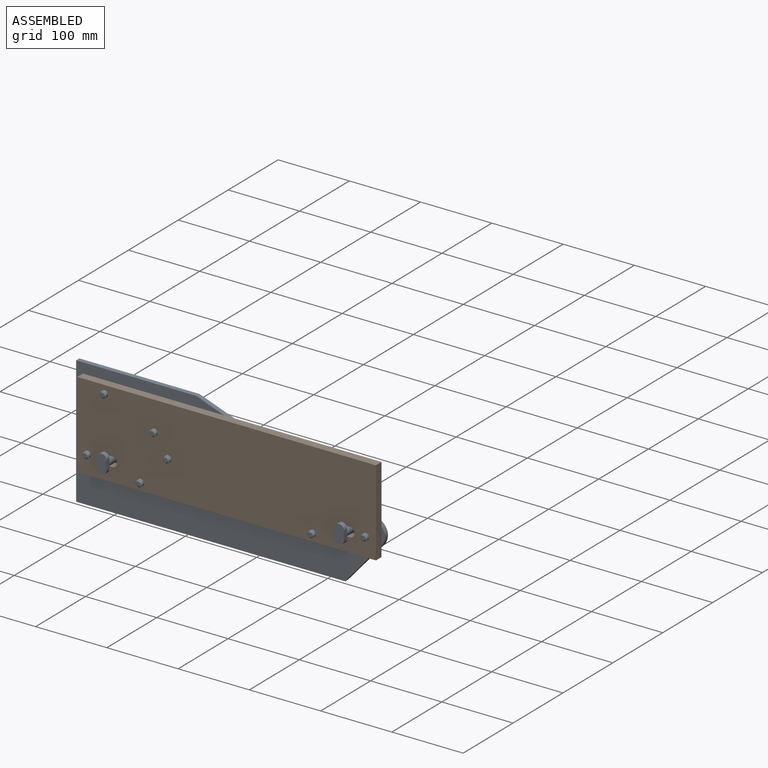
[diagram: assembled view]
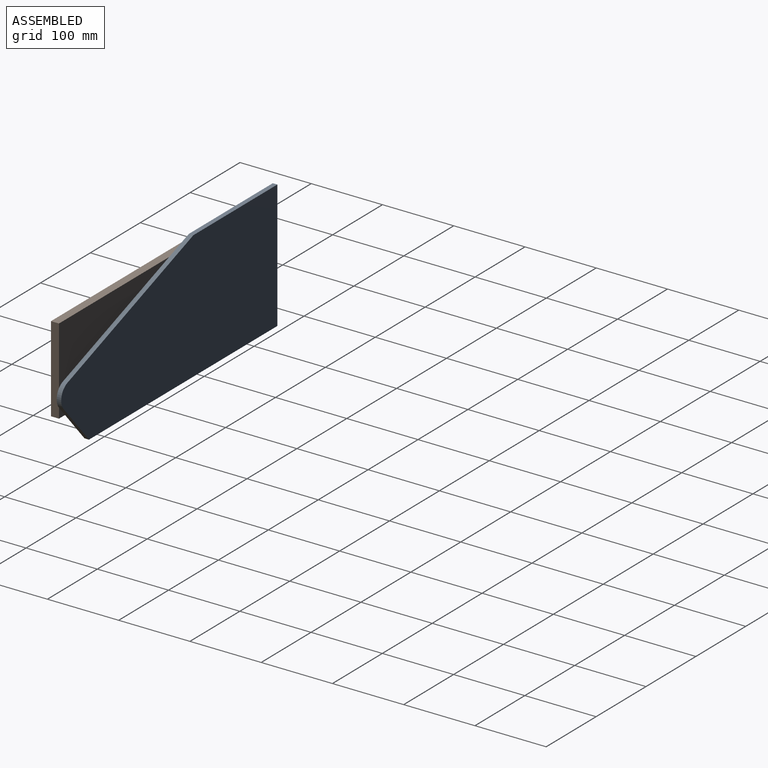
[diagram: assembled view, second angle]
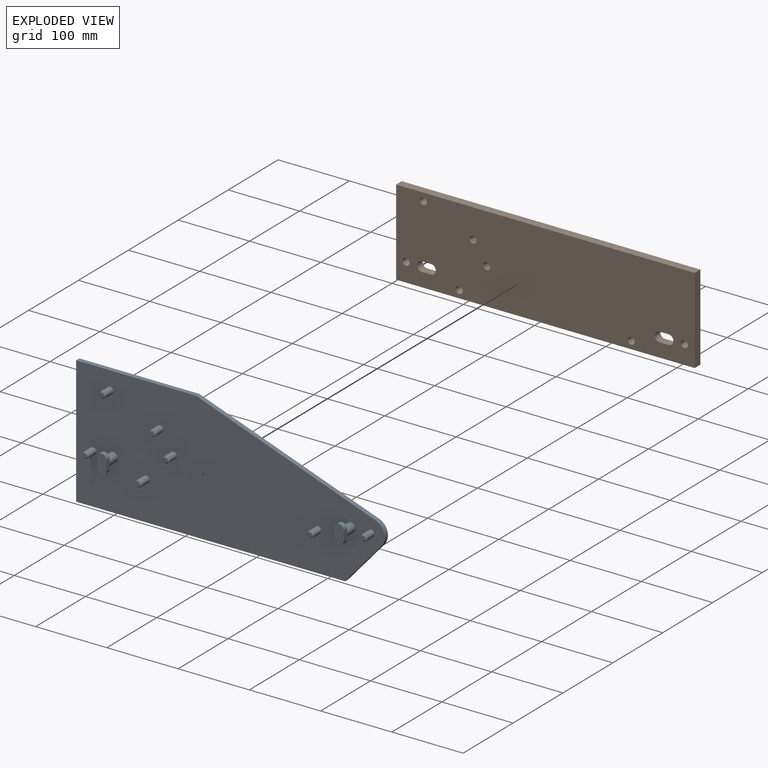
[diagram: exploded view]
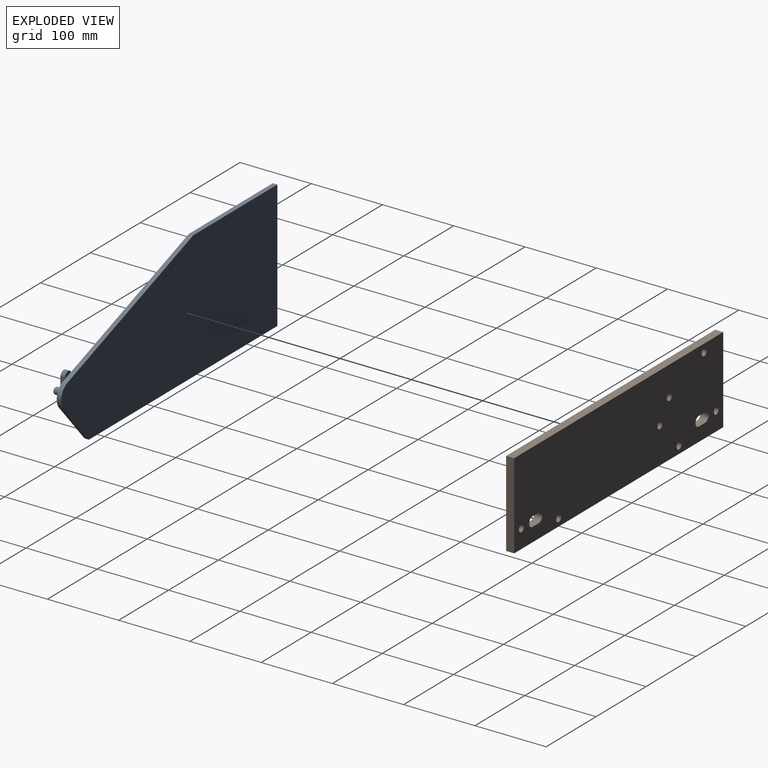
[diagram: exploded view, second angle]
ASSEMBLY  parts=2 mates=2
PART A: 43 faces, bbox 433.2x29.8x179.4 mm
  f0: plane 58.18x50.96mm, normal (0.75,0,-0.66), area 491.1mm2, adj f1,f5,f6,f7
  f1: cylinder r=19.05mm len=30.48mm, axis (0,1,0), area 235.3mm2, adj f0,f2,f6,f7
  f2: plane 252.32x90.75mm, normal (0.34,0,0.94), area 1702.7mm2, adj f1,f3,f6,f7
  f3: plane 168.28x6.35mm, normal (0,0,1), area 1068.5mm2, adj f2,f4,f6,f7
  f4: plane 179.4x6.35mm, normal (-1,0,0), area 1139.2mm2, adj f3,f5,f6,f7
  f5: plane 377.52x6.35mm, normal (0,0,-1), area 2397.3mm2, adj f0,f4,f6,f7
  f6: plane 433.2x179.4mm, normal (0,-1,0), area 62560.6mm2, adj f0,f1,f2,f3,f4,f5,f8,f10
  f7: plane 433.2x179.4mm, normal (0,1,0), area 63286.5mm2, adj f0,f1,f2,f3,f4,f5
  f8: cylinder r=4.64mm len=14.29mm, axis (0,1,0), area 416.1mm2, adj f6,f28
  f9: plane 6.1x6.1mm, normal (0,-1,0), area 29.2mm2, adj f28
  f10: cylinder r=4.64mm len=14.29mm, axis (0,1,0), area 416.1mm2, adj f6,f26
  f11: plane 6.1x6.1mm, normal (0,-1,0), area 29.2mm2, adj f26
  f12: cylinder r=4.64mm len=14.29mm, axis (0,1,0), area 416.1mm2, adj f6,f23
  f13: plane 6.1x6.1mm, normal (0,-1,0), area 29.2mm2, adj f23
  f14: cylinder r=4.64mm len=14.29mm, axis (0,1,0), area 416.1mm2, adj f6,f24
  f15: plane 6.1x6.1mm, normal (0,-1,0), area 29.2mm2, adj f24
  f16: cylinder r=4.64mm len=14.29mm, axis (0,1,0), area 416.1mm2, adj f6,f27
  f17: plane 6.1x6.1mm, normal (0,-1,0), area 29.2mm2, adj f27
  f18: cylinder r=4.64mm len=14.29mm, axis (0,1,0), area 416.1mm2, adj f6,f25
  f19: plane 6.1x6.1mm, normal (0,-1,0), area 29.2mm2, adj f25
  f20: cylinder r=4.64mm len=14.29mm, axis (0,1,0), area 416.1mm2, adj f6,f22
  f21: plane 6.1x6.1mm, normal (0,-1,0), area 29.2mm2, adj f22
  f22: cone r=3.05mm half-angle=45deg, axis (0,1,0), area 54.2mm2, adj f20,f21
  f23: cone r=3.05mm half-angle=45deg, axis (0,1,0), area 54.2mm2, adj f12,f13
  f24: cone r=3.05mm half-angle=45deg, axis (0,1,0), area 54.2mm2, adj f14,f15
  f25: cone r=3.05mm half-angle=45deg, axis (0,1,0), area 54.2mm2, adj f18,f19
  f26: cone r=3.05mm half-angle=45deg, axis (0,1,0), area 54.2mm2, adj f10,f11
  f27: cone r=3.05mm half-angle=45deg, axis (0,1,0), area 54.2mm2, adj f16,f17
  f28: cone r=3.05mm half-angle=45deg, axis (0,1,0), area 54.2mm2, adj f8,f9
  f29: cylinder r=6.35mm len=17.15mm, axis (0,1,0), area 684.1mm2, adj f6,f42
  f30: cylinder r=6.35mm len=17.15mm, axis (0,1,0), area 684.1mm2, adj f6,f36
  f31: plane 12.7x6.35mm, normal (1,0,0), area 80.6mm2, adj f32,f34,f35,f36
  f32: cylinder r=6.74mm len=13.49mm, axis (0,1,0), area 134.5mm2, adj f31,f33,f35,f36
  f33: plane 12.7x6.35mm, normal (-1,0,0), area 80.6mm2, adj f32,f34,f35,f36
  f34: cylinder r=6.74mm len=13.49mm, axis (0,1,0), area 134.5mm2, adj f31,f33,f35,f36
  f35: plane 26.19x13.49mm, normal (0,-1,0), area 314.2mm2, adj f31,f32,f33,f34
  f36: plane 26.19x13.49mm, normal (0,1,0), area 187.5mm2, adj f30,f31,f32,f33,f34
  f37: plane 12.7x6.35mm, normal (1,0,0), area 80.6mm2, adj f38,f40,f41,f42
  f38: cylinder r=6.74mm len=13.49mm, axis (0,1,0), area 134.5mm2, adj f37,f39,f41,f42
  f39: plane 12.7x6.35mm, normal (-1,0,0), area 80.6mm2, adj f38,f40,f41,f42
  f40: cylinder r=6.74mm len=13.49mm, axis (0,1,0), area 134.5mm2, adj f37,f39,f41,f42
  f41: plane 26.19x13.49mm, normal (0,-1,0), area 314.2mm2, adj f37,f38,f39,f40
  f42: plane 26.19x13.49mm, normal (0,1,0), area 187.5mm2, adj f29,f37,f38,f39,f40
PART B: 21 faces, bbox 419.1x11.3x120.7 mm
  f0: plane 120.65x11.25mm, normal (-1,0,0), area 1357.6mm2, adj f1,f3,f4,f5
  f1: plane 419.1x11.25mm, normal (0,0,-1), area 4715.8mm2, adj f0,f2,f4,f5
  f2: plane 120.65x11.25mm, normal (1,0,0), area 1357.6mm2, adj f1,f3,f4,f5
  f3: plane 419.1x11.25mm, normal (0,0,1), area 4715.8mm2, adj f0,f2,f4,f5
  f4: plane 419.1x120.65mm, normal (0,-1,0), area 49421.2mm2, adj f0,f1,f2,f3,f6,f7,f8,f9
  f5: plane 419.1x120.65mm, normal (0,1,0), area 49421.2mm2, adj f0,f1,f2,f3,f6,f7,f8,f9
  f6: cylinder r=4.84mm len=11.25mm, axis (0,-1,0), area 342.1mm2, adj f4,f5
  f7: cylinder r=4.84mm len=11.25mm, axis (0,-1,0), area 342.1mm2, adj f4,f5
  f8: cylinder r=4.84mm len=11.25mm, axis (0,-1,0), area 342.1mm2, adj f4,f5
  f9: cylinder r=4.84mm len=11.25mm, axis (0,-1,0), area 342.1mm2, adj f4,f5
  f10: cylinder r=4.84mm len=11.25mm, axis (0,-1,0), area 342.1mm2, adj f4,f5
  f11: cylinder r=4.84mm len=11.25mm, axis (0,-1,0), area 342.1mm2, adj f4,f5
  f12: cylinder r=4.84mm len=11.25mm, axis (0,-1,0), area 342.1mm2, adj f4,f5
  f13: plane 12.7x11.25mm, normal (0,0,1), area 142.9mm2, adj f4,f5,f14,f16
  f14: cylinder r=6.74mm len=13.49mm, axis (0,-1,0), area 238.4mm2, adj f4,f5,f13,f15
  f15: plane 12.7x11.25mm, normal (0,0,-1), area 142.9mm2, adj f4,f5,f14,f16
  f16: cylinder r=6.74mm len=13.49mm, axis (0,-1,0), area 238.4mm2, adj f4,f5,f13,f15
  f17: plane 12.7x11.25mm, normal (0,0,1), area 142.9mm2, adj f4,f5,f18,f20
  f18: cylinder r=6.74mm len=13.49mm, axis (0,-1,0), area 238.4mm2, adj f4,f5,f17,f19
  f19: plane 12.7x11.25mm, normal (0,0,-1), area 142.9mm2, adj f4,f5,f18,f20
  f20: cylinder r=6.74mm len=13.49mm, axis (0,-1,0), area 238.4mm2, adj f4,f5,f17,f19
PLACE A t=(-448.02,-104.2,38.09)mm
PLACE B t=(-438.49,-113,82.54)mm
MATE planar A.f8 <-> B.f12  axis (0,-1,0) through (-424.39,-107.38,108.81)mm
MATE slider A.f16 <-> B.f6  axis (0,-1,0) through (-400.19,-107.38,192.15)mm
